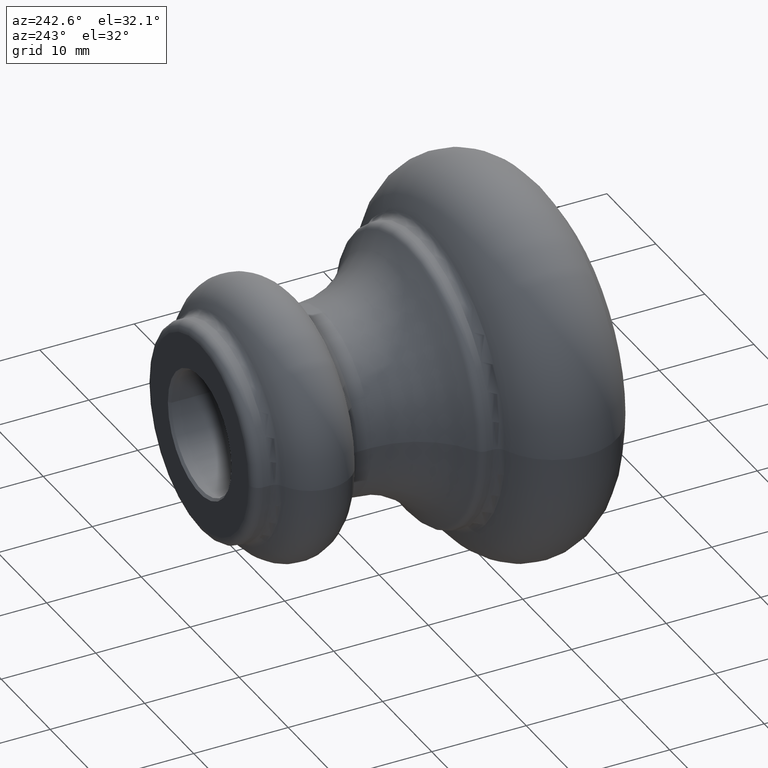
[diagram: clean part render]
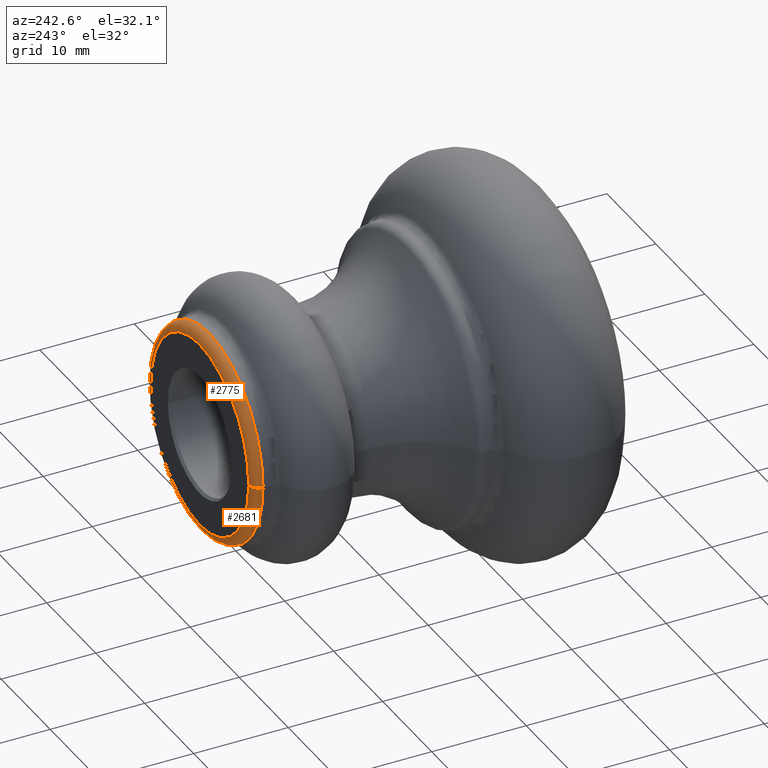
[diagram: same view with one multi-face feature highlighted, each face labeled with its STEP entity id]
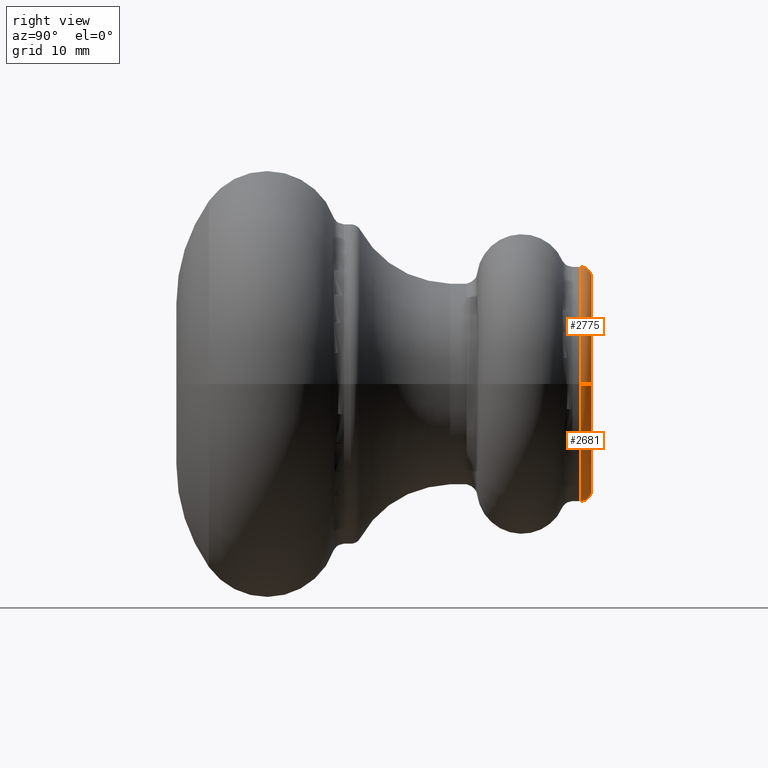
[diagram: same view with one multi-face feature highlighted, each face labeled with its STEP entity id]
A machine part, auxiliary view. The highlighted faces form ONE feature: a constant-radius fillet chain: 2 tangent blend faces with common blend radius 1 mm. The faces share edges in the B-rep.
A second angle (right view) of the same feature is appended — it is thin or edge-on in the first view.
Their STEP definitions:
[1] entity #2681 (Torus):
#34 = EDGE_LOOP ( 'NONE', ( #10242, #4902, #2714, #308 ) ) ;
#93 = CARTESIAN_POINT ( 'NONE',  ( -9.999999999999998224, 39.00000000000000000, 0.000000000000000000 ) ) ;
#308 = ORIENTED_EDGE ( 'NONE', *, *, #2801, .F. ) ;
#387 = CIRCLE ( 'NONE', #8872, 11.00000000000000000 ) ;
#649 = DIRECTION ( 'NONE',  ( -1.000000000000000000, 0.000000000000000000, 0.000000000000000000 ) ) ;
#722 = CARTESIAN_POINT ( 'NONE',  ( 9.999999999999998224, 38.00000000000000000, 1.224646799147353059E-15 ) ) ;
#754 = DIRECTION ( 'NONE',  ( 1.000000000000000000, 0.000000000000000000, 1.224646799147351482E-16 ) ) ;
#1142 = CARTESIAN_POINT ( 'NONE',  ( 9.999999999999998224, 39.00000000000000000, 1.285879139104720633E-15 ) ) ;
#1497 = DIRECTION ( 'NONE',  ( -1.000000000000000000, 0.000000000000000000, 0.000000000000000000 ) ) ;
#1961 = VERTEX_POINT ( 'NONE', #8622 ) ;
#2226 = VERTEX_POINT ( 'NONE', #6303 ) ;
#2565 = CIRCLE ( 'NONE', #2887, 1.000000000000000888 ) ;
#2681 = ADVANCED_FACE ( 'NONE', ( #6529 ), #6926, .T. ) ;
#2714 = ORIENTED_EDGE ( 'NONE', *, *, #5799, .T. ) ;
#2801 = EDGE_CURVE ( 'NONE', #6835, #10979, #10549, .T. ) ;
#2887 = AXIS2_PLACEMENT_3D ( 'NONE', #722, #10928, #754 ) ;
#2970 = DIRECTION ( 'NONE',  ( 3.140119997813719199E-18, 1.000000000000000000, -0.000000000000000000 ) ) ;
#4437 = AXIS2_PLACEMENT_3D ( 'NONE', #10829, #5705, #649 ) ;
#4901 = DIRECTION ( 'NONE',  ( -3.140119997813719199E-18, -1.000000000000000000, 0.000000000000000000 ) ) ;
#4902 = ORIENTED_EDGE ( 'NONE', *, *, #7127, .F. ) ;
#5224 = AXIS2_PLACEMENT_3D ( 'NONE', #10772, #5655, #7377 ) ;
#5655 = DIRECTION ( 'NONE',  ( 3.140119997813719199E-18, 1.000000000000000000, -0.000000000000000000 ) ) ;
#5705 = DIRECTION ( 'NONE',  ( -0.000000000000000000, 0.000000000000000000, -1.000000000000000000 ) ) ;
#5799 = EDGE_CURVE ( 'NONE', #2226, #10979, #7951, .T. ) ;
#6303 = CARTESIAN_POINT ( 'NONE',  ( -11.00000000000000000, 38.00000000000000000, 0.000000000000000000 ) ) ;
#6529 = FACE_OUTER_BOUND ( 'NONE', #34, .T. ) ;
#6835 = VERTEX_POINT ( 'NONE', #1142 ) ;
#6926 = TOROIDAL_SURFACE ( 'NONE', #10806, 9.999999999999998224, 1.000000000000000000 ) ;
#7127 = EDGE_CURVE ( 'NONE', #2226, #1961, #387, .T. ) ;
#7377 = DIRECTION ( 'NONE',  ( -1.000000000000000000, 0.000000000000000000, 0.000000000000000000 ) ) ;
#7893 = CARTESIAN_POINT ( 'NONE',  ( 1.193245599169213126E-16, 38.00000000000000000, 0.000000000000000000 ) ) ;
#7951 = CIRCLE ( 'NONE', #4437, 1.000000000000000888 ) ;
#8622 = CARTESIAN_POINT ( 'NONE',  ( 11.00000000000000000, 38.00000000000000000, 1.347111479062088405E-15 ) ) ;
#8845 = DIRECTION ( 'NONE',  ( -1.000000000000000000, 3.140119997813719199E-18, 0.000000000000000000 ) ) ;
#8872 = AXIS2_PLACEMENT_3D ( 'NONE', #10001, #4901, #1497 ) ;
#10001 = CARTESIAN_POINT ( 'NONE',  ( 1.193245599169213126E-16, 38.00000000000000000, 0.000000000000000000 ) ) ;
#10242 = ORIENTED_EDGE ( 'NONE', *, *, #10785, .F. ) ;
#10549 = CIRCLE ( 'NONE', #5224, 9.999999999999998224 ) ;
#10772 = CARTESIAN_POINT ( 'NONE',  ( 1.224646799147350495E-16, 39.00000000000000000, 0.000000000000000000 ) ) ;
#10785 = EDGE_CURVE ( 'NONE', #1961, #6835, #2565, .T. ) ;
#10806 = AXIS2_PLACEMENT_3D ( 'NONE', #7893, #2970, #8845 ) ;
#10829 = CARTESIAN_POINT ( 'NONE',  ( -9.999999999999998224, 38.00000000000000000, 0.000000000000000000 ) ) ;
#10928 = DIRECTION ( 'NONE',  ( -1.224646799147353207E-16, 3.845537904261165162E-34, 1.000000000000000000 ) ) ;
#10979 = VERTEX_POINT ( 'NONE', #93 ) ;
[2] entity #2775 (Torus):
#93 = CARTESIAN_POINT ( 'NONE',  ( -9.999999999999998224, 39.00000000000000000, 0.000000000000000000 ) ) ;
#490 = DIRECTION ( 'NONE',  ( 3.140119997813719199E-18, 1.000000000000000000, -0.000000000000000000 ) ) ;
#550 = ORIENTED_EDGE ( 'NONE', *, *, #10580, .F. ) ;
#558 = CIRCLE ( 'NONE', #7940, 9.999999999999998224 ) ;
#559 = CARTESIAN_POINT ( 'NONE',  ( 1.193245599169213126E-16, 38.00000000000000000, 0.000000000000000000 ) ) ;
#649 = DIRECTION ( 'NONE',  ( -1.000000000000000000, 0.000000000000000000, 0.000000000000000000 ) ) ;
#722 = CARTESIAN_POINT ( 'NONE',  ( 9.999999999999998224, 38.00000000000000000, 1.224646799147353059E-15 ) ) ;
#754 = DIRECTION ( 'NONE',  ( 1.000000000000000000, 0.000000000000000000, 1.224646799147351482E-16 ) ) ;
#1142 = CARTESIAN_POINT ( 'NONE',  ( 9.999999999999998224, 39.00000000000000000, 1.285879139104720633E-15 ) ) ;
#1961 = VERTEX_POINT ( 'NONE', #8622 ) ;
#2226 = VERTEX_POINT ( 'NONE', #6303 ) ;
#2565 = CIRCLE ( 'NONE', #2887, 1.000000000000000888 ) ;
#2775 = ADVANCED_FACE ( 'NONE', ( #6254 ), #9463, .T. ) ;
#2887 = AXIS2_PLACEMENT_3D ( 'NONE', #722, #10928, #754 ) ;
#3781 = ORIENTED_EDGE ( 'NONE', *, *, #6418, .F. ) ;
#3870 = DIRECTION ( 'NONE',  ( -3.140119997813719199E-18, -1.000000000000000000, 0.000000000000000000 ) ) ;
#4437 = AXIS2_PLACEMENT_3D ( 'NONE', #10829, #5705, #649 ) ;
#4550 = DIRECTION ( 'NONE',  ( -1.000000000000000000, 0.000000000000000000, 0.000000000000000000 ) ) ;
#4707 = CARTESIAN_POINT ( 'NONE',  ( 1.224646799147350495E-16, 39.00000000000000000, 0.000000000000000000 ) ) ;
#5527 = CARTESIAN_POINT ( 'NONE',  ( 1.193245599169213126E-16, 38.00000000000000000, 0.000000000000000000 ) ) ;
#5705 = DIRECTION ( 'NONE',  ( -0.000000000000000000, 0.000000000000000000, -1.000000000000000000 ) ) ;
#5799 = EDGE_CURVE ( 'NONE', #2226, #10979, #7951, .T. ) ;
#5935 = CIRCLE ( 'NONE', #9566, 11.00000000000000000 ) ;
#6254 = FACE_OUTER_BOUND ( 'NONE', #7588, .T. ) ;
#6303 = CARTESIAN_POINT ( 'NONE',  ( -11.00000000000000000, 38.00000000000000000, 0.000000000000000000 ) ) ;
#6418 = EDGE_CURVE ( 'NONE', #1961, #2226, #5935, .T. ) ;
#6835 = VERTEX_POINT ( 'NONE', #1142 ) ;
#7256 = DIRECTION ( 'NONE',  ( -1.000000000000000000, 3.140119997813719199E-18, 0.000000000000000000 ) ) ;
#7262 = DIRECTION ( 'NONE',  ( -1.000000000000000000, 0.000000000000000000, 0.000000000000000000 ) ) ;
#7588 = EDGE_LOOP ( 'NONE', ( #3781, #10277, #550, #7845 ) ) ;
#7845 = ORIENTED_EDGE ( 'NONE', *, *, #5799, .F. ) ;
#7940 = AXIS2_PLACEMENT_3D ( 'NONE', #4707, #490, #7262 ) ;
#7951 = CIRCLE ( 'NONE', #4437, 1.000000000000000888 ) ;
#8622 = CARTESIAN_POINT ( 'NONE',  ( 11.00000000000000000, 38.00000000000000000, 1.347111479062088405E-15 ) ) ;
#9463 = TOROIDAL_SURFACE ( 'NONE', #10952, 9.999999999999998224, 1.000000000000000000 ) ;
#9566 = AXIS2_PLACEMENT_3D ( 'NONE', #5527, #3870, #4550 ) ;
#10277 = ORIENTED_EDGE ( 'NONE', *, *, #10785, .T. ) ;
#10580 = EDGE_CURVE ( 'NONE', #10979, #6835, #558, .T. ) ;
#10627 = DIRECTION ( 'NONE',  ( 3.140119997813719199E-18, 1.000000000000000000, -0.000000000000000000 ) ) ;
#10785 = EDGE_CURVE ( 'NONE', #1961, #6835, #2565, .T. ) ;
#10829 = CARTESIAN_POINT ( 'NONE',  ( -9.999999999999998224, 38.00000000000000000, 0.000000000000000000 ) ) ;
#10928 = DIRECTION ( 'NONE',  ( -1.224646799147353207E-16, 3.845537904261165162E-34, 1.000000000000000000 ) ) ;
#10952 = AXIS2_PLACEMENT_3D ( 'NONE', #559, #10627, #7256 ) ;
#10979 = VERTEX_POINT ( 'NONE', #93 ) ;